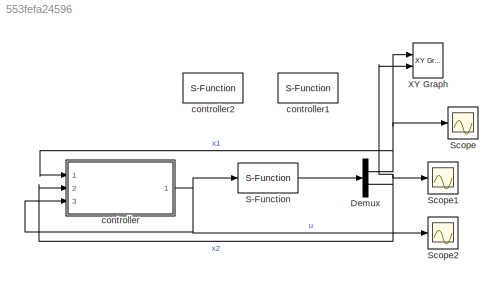
MODEL slx_553fefa24596
KIND model
CONFIG AbsTol = auto
CONFIG EnableMultiTasking = off
CONFIG FixedStep = auto
CONFIG MaxStep = auto
CONFIG MinStep = auto
CONFIG PreLoadFcn = Mode = 1;\nSFB = Simulink.Variant('Mode == 1');\nOFB = Simulink.Variant('Mode == 2');
CONFIG RelTol = 1e-3
CONFIG SampleTimeConstraint = Unconstrained
CONFIG Solver = VariableStepAuto
CONFIG SolverName = VariableStepAuto
CONFIG StartTime = 0.0
CONFIG StopTime = 10
BLOCK [Demux] Demux
  DisplayOption = bar
  Outputs = 2
  Ports = [1, 2]
BLOCK [S-Function] S-Function
  EnableBusSupport = off
  FunctionName = plant
  Ports = [1, 1]
  SFcnIsStateOwnerBlock = off
  SFunctionDeploymentMode = off
BLOCK [Scope] Scope
  NumInputPorts = 1
  Ports = [1]
  ScopeSpecificationString = Simulink.scopes.TimeScopeBlockCfg('CurrentConfiguration', extmgr.ConfigurationSet(extmgr.Configuration('Core','General UI',true),extmgr.Configuration('Core','Source UI',true),extmgr.Configuration('Sources','WiredSimulink',true),extmgr.Configuration('Visuals','Time Domain',true,'SerializedDisplays',{struct('MinYLimReal','-0.47473','MaxYLimReal','2.27497','YLabelReal','','MinYLimMag','0.00000','MaxY...<+1348ch>
BLOCK [Scope] Scope1
  NumInputPorts = 1
  Ports = [1]
  ScopeSpecificationString = Simulink.scopes.TimeScopeBlockCfg('CurrentConfiguration', extmgr.ConfigurationSet(extmgr.Configuration('Core','General UI',true),extmgr.Configuration('Core','Source UI',true),extmgr.Configuration('Sources','WiredSimulink',true,'DataLoggingVariableName','ScopeData1'),extmgr.Configuration('Visuals','Time Domain',true,'SerializedDisplays',{struct('MinYLimReal','-60.55928','MaxYLimReal','6.72881','YLa...<+1420ch>
BLOCK [Scope] Scope2
  NumInputPorts = 1
  Ports = [1]
  ScopeSpecificationString = Simulink.scopes.TimeScopeBlockCfg('CurrentConfiguration', extmgr.ConfigurationSet(extmgr.Configuration('Core','General UI',true),extmgr.Configuration('Core','Source UI',true),extmgr.Configuration('Sources','WiredSimulink',true,'DataLoggingVariableName','ScopeData2'),extmgr.Configuration('Visuals','Time Domain',true,'SerializedDisplays',{struct('MinYLimReal','-1.25','MaxYLimReal','1.25','YLabelReal...<+1395ch>
BLOCK [Reference] XY Graph  REF=simulink/Sinks/XY Graph
  Ports = [2]
  SourceBlock = simulink/Sinks/XY Graph
  SourceProductBaseCode = SL
  SourceProductName = Simulink
  SourceType = XY scope.
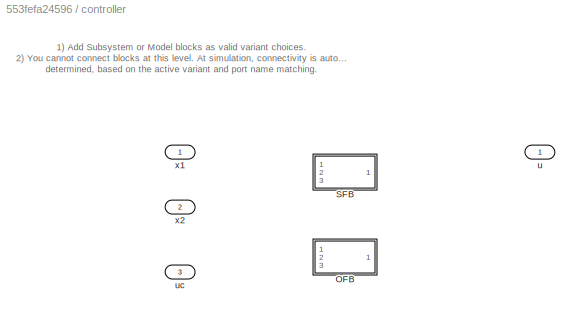
BLOCK [SubSystem] controller
  Ports = [3, 1]
  RequestExecContextInheritance = off
  Variant = on
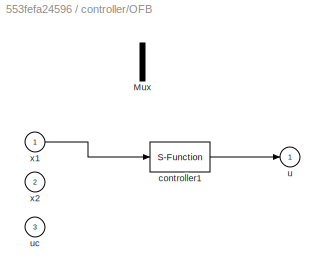
BLOCK [SubSystem] controller/OFB
  Ports = [3, 1]
  RequestExecContextInheritance = off
  Variant = off
  VariantControl = OFB
BLOCK [Mux] controller/OFB/Mux
  Commented = on
  DisplayOption = bar
  Inputs = 2
  Ports = [2, 1]
BLOCK [S-Function] controller/OFB/controller1
  EnableBusSupport = off
  FunctionName = OFB
  Ports = [1, 1]
  SFcnIsStateOwnerBlock = off
  SFunctionDeploymentMode = off
BLOCK [Outport] controller/OFB/u
  IconDisplay = Port number
BLOCK [Inport] controller/OFB/uc
  IconDisplay = Port number
  Port = 3
BLOCK [Inport] controller/OFB/x1
  IconDisplay = Port number
BLOCK [Inport] controller/OFB/x2
  IconDisplay = Port number
  Port = 2
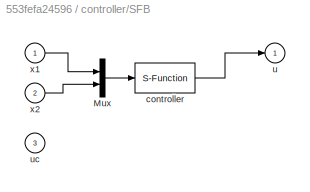
BLOCK [SubSystem] controller/SFB
  Ports = [3, 1]
  RequestExecContextInheritance = off
  Variant = off
  VariantControl = SFB
BLOCK [Mux] controller/SFB/Mux
  DisplayOption = bar
  Inputs = 2
  Ports = [2, 1]
BLOCK [S-Function] controller/SFB/controller
  EnableBusSupport = off
  FunctionName = SFB
  Ports = [1, 1]
  SFcnIsStateOwnerBlock = off
  SFunctionDeploymentMode = off
BLOCK [Outport] controller/SFB/u
  IconDisplay = Port number
BLOCK [Inport] controller/SFB/uc
  IconDisplay = Port number
  Port = 3
BLOCK [Inport] controller/SFB/x1
  IconDisplay = Port number
BLOCK [Inport] controller/SFB/x2
  IconDisplay = Port number
  Port = 2
BLOCK [Outport] controller/u
  IconDisplay = Port number
BLOCK [Inport] controller/uc
  IconDisplay = Port number
  Port = 3
BLOCK [Inport] controller/x1
  IconDisplay = Port number
BLOCK [Inport] controller/x2
  IconDisplay = Port number
  Port = 2
BLOCK [S-Function] controller1
  Commented = on
  EnableBusSupport = off
  FunctionName = OFB
  Ports = [1, 1]
  SFcnIsStateOwnerBlock = off
  SFunctionDeploymentMode = off
BLOCK [S-Function] controller2
  Commented = on
  EnableBusSupport = off
  FunctionName = SFB
  Ports = [1, 1]
  SFcnIsStateOwnerBlock = off
  SFunctionDeploymentMode = off
ANNOTATION controller: 1) Add Subsystem or Model blocks as valid variant choices. 2) You cannot connect blocks at this level. At simulation, connectivity is automatically determined, based on the active variant and port name matching.
NET Demux:1 -> Scope:1, XY Graph:1, controller:1
NET Demux:2 -> Scope1:1, XY Graph:2, controller:2
LINE S-Function:1 -> Demux:1
LINE controller/OFB/controller1:1 -> controller/OFB/u:1
LINE controller/OFB/x1:1 -> controller/OFB/controller1:1
LINE controller/SFB/Mux:1 -> controller/SFB/controller:1
LINE controller/SFB/controller:1 -> controller/SFB/u:1
LINE controller/SFB/x1:1 -> controller/SFB/Mux:1
LINE controller/SFB/x2:1 -> controller/SFB/Mux:2
NET controller:1 -> S-Function:1, Scope2:1, controller:3
note: NET lines group one-source signal fan-out (src -> all destinations, sorted); 1:1 wires keep LINE
